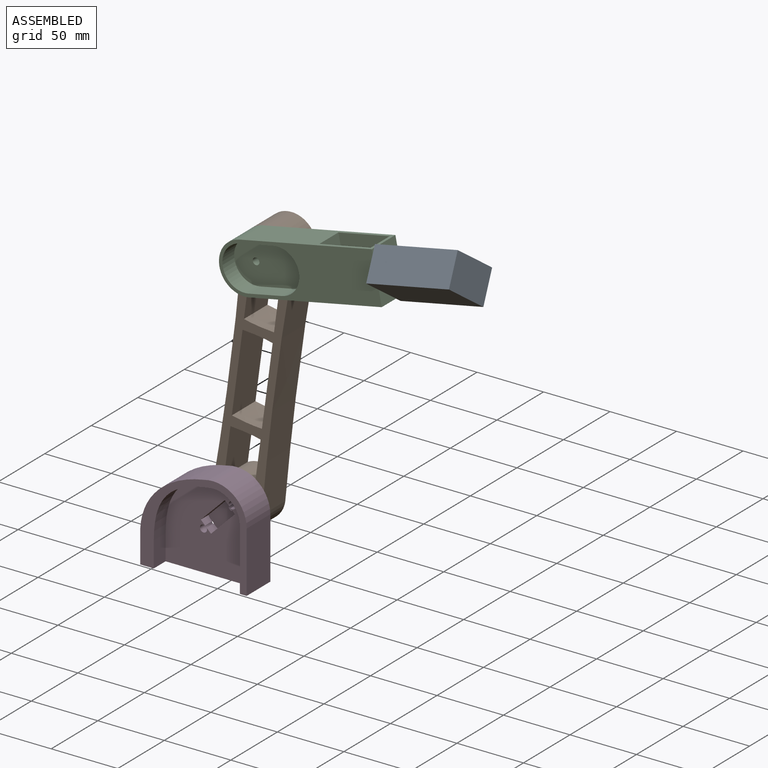
[diagram: assembled view]
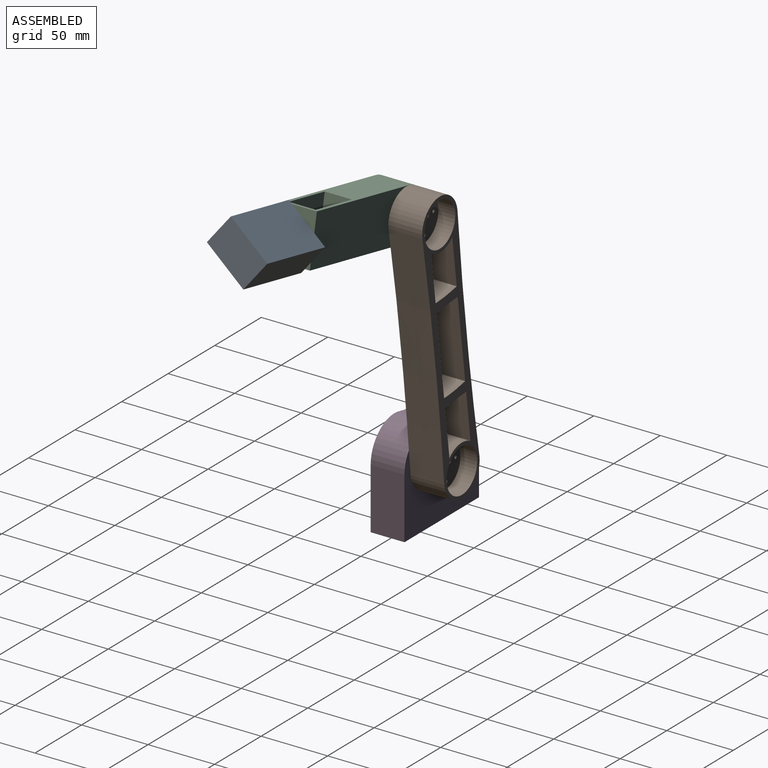
[diagram: assembled view, second angle]
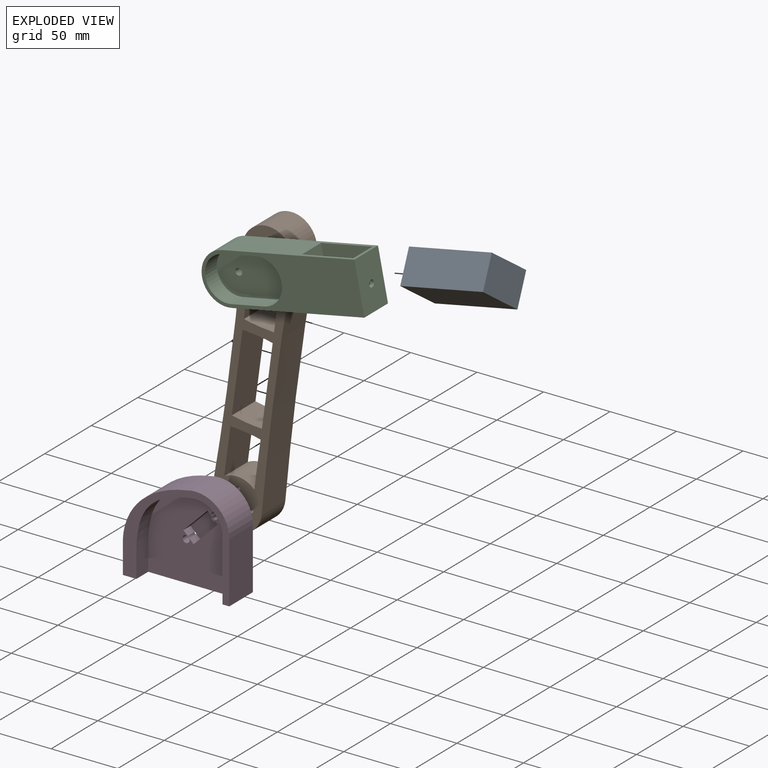
[diagram: exploded view]
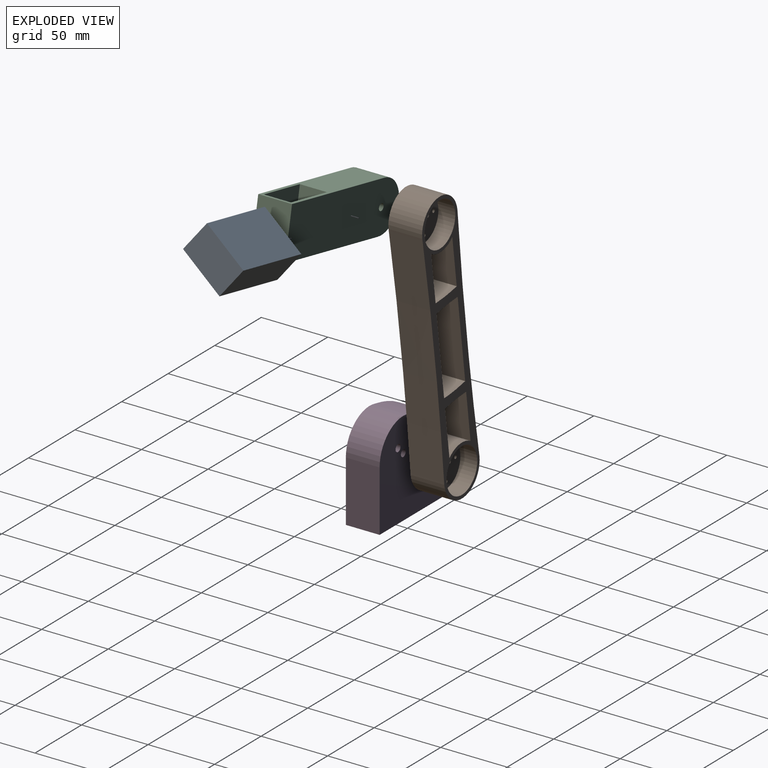
[diagram: exploded view, second angle]
ASSEMBLY  parts=4 mates=3
PART A: 24 faces, bbox 63.5x25.4x38.1 mm
  f0: plane 38.1x25.4mm, normal (-1,0,0), area 906.9mm2, adj f1,f3,f4,f5,f7,f9,f11,f13
  f1: plane 63.5x25.4mm, normal (0,0,-1), area 1612.9mm2, adj f0,f2,f4,f5
  f2: plane 38.1x25.4mm, normal (1,0,0), area 967.7mm2, adj f1,f3,f4,f5
  f3: plane 63.5x25.4mm, normal (0,0,1), area 1612.9mm2, adj f0,f2,f4,f5
  f4: plane 63.5x38.1mm, normal (0,-1,0), area 2419.3mm2, adj f0,f1,f2,f3
  f5: plane 63.5x38.1mm, normal (0,1,0), area 2419.3mm2, adj f0,f1,f2,f3
  f6: cone r=0mm half-angle=59deg, axis (-1,0,0), area 5.9mm2, adj f7
  f7: cylinder r=1.27mm len=7.62mm, axis (-1,0,0), area 60.8mm2, adj f0,f6
  f8: cone r=0mm half-angle=59deg, axis (-1,0,0), area 5.9mm2, adj f9
  f9: cylinder r=1.27mm len=7.62mm, axis (-1,0,0), area 60.8mm2, adj f0,f8
  f10: cone r=0mm half-angle=59deg, axis (-1,0,0), area 5.9mm2, adj f11
  f11: cylinder r=1.27mm len=7.62mm, axis (-1,0,0), area 60.8mm2, adj f0,f10
  f12: cone r=0mm half-angle=59deg, axis (-1,0,0), area 5.9mm2, adj f13
  f13: cylinder r=1.27mm len=7.62mm, axis (-1,0,0), area 60.8mm2, adj f0,f12
  f14: cone r=0mm half-angle=59deg, axis (-1,0,0), area 5.9mm2, adj f15
  f15: cylinder r=1.27mm len=7.62mm, axis (-1,0,0), area 60.8mm2, adj f0,f14
  f16: cone r=0mm half-angle=59deg, axis (-1,0,0), area 5.9mm2, adj f17
  f17: cylinder r=1.27mm len=7.62mm, axis (-1,0,0), area 60.8mm2, adj f0,f16
  f18: cone r=0mm half-angle=59deg, axis (-1,0,0), area 5.9mm2, adj f19
  f19: cylinder r=1.27mm len=7.62mm, axis (-1,0,0), area 60.8mm2, adj f0,f18
  f20: cone r=0mm half-angle=59deg, axis (-1,0,0), area 5.9mm2, adj f21
  f21: cylinder r=1.27mm len=7.62mm, axis (-1,0,0), area 60.8mm2, adj f0,f20
  f22: cone r=0mm half-angle=59deg, axis (-1,0,0), area 23.6mm2, adj f23
  f23: cylinder r=2.54mm len=7.62mm, axis (-1,0,0), area 121.6mm2, adj f0,f22
PART B: 44 faces, bbox 215.9x25.4x38.1 mm
  f0: cylinder r=1.27mm len=12.7mm, axis (0,1,0), area 101.3mm2, adj f9,f10
  f1: cylinder r=1.27mm len=12.7mm, axis (0,1,0), area 101.3mm2, adj f9,f10
  f2: cylinder r=1.27mm len=12.7mm, axis (0,1,0), area 101.3mm2, adj f9,f10
  f3: cylinder r=2.54mm len=12.7mm, axis (0,1,0), area 202.7mm2, adj f9,f10
  f4: cylinder r=1.27mm len=12.7mm, axis (0,1,0), area 101.3mm2, adj f9,f10
  f5: cylinder r=1.27mm len=12.7mm, axis (0,1,0), area 101.3mm2, adj f9,f10
  f6: cylinder r=1.27mm len=12.7mm, axis (0,1,0), area 101.3mm2, adj f9,f10
  f7: cylinder r=1.27mm len=12.7mm, axis (0,1,0), area 101.3mm2, adj f9,f10
  f8: cylinder r=1.27mm len=12.7mm, axis (0,1,0), area 101.3mm2, adj f9,f10
  f9: plane 33.02x33.02mm, normal (0,-1,0), area 795.5mm2, adj f0,f1,f2,f3,f4,f5,f6,f7
  f10: plane 215.9x38.1mm, normal (0,1,0), area 4408.2mm2, adj f0,f1,f2,f3,f4,f5,f6,f7
  f11: extruded ~25.4x22.86mm, area 581.5mm2, adj f10,f12,f27,f33
  f12: plane 35.56x25.4mm, normal (0,0,-1), area 903.2mm2, adj f10,f11,f13,f33
  f13: cylinder r=19.05mm len=25.4mm, axis (0,1,0), area 622.7mm2, adj f10,f12,f27,f33
  f14: extruded ~25.4x22.86mm, area 581.5mm2, adj f10,f15,f28,f33
  f15: plane 60.96x25.4mm, normal (0,0,-1), area 1548.4mm2, adj f10,f14,f16,f33
  f16: extruded ~25.4x22.86mm, area 581.5mm2, adj f10,f15,f28,f33
  f17: plane 35.56x25.4mm, normal (0,0,1), area 903.2mm2, adj f10,f18,f30,f33
  f18: cylinder r=19.05mm len=25.4mm, axis (0,1,0), area 622.7mm2, adj f10,f17,f19,f33
  f19: plane 35.56x25.4mm, normal (0,0,-1), area 903.2mm2, adj f10,f18,f30,f33
  f20: cylinder r=19.05mm len=38.1mm, axis (0,1,0), area 1520.1mm2, adj f10,f21,f31,f33
  f21: extruded ~25.4x1.65mm, area 42mm2, adj f10,f20,f22,f33
  f22: extruded ~174.57x25.4mm, area 4435.3mm2, adj f10,f21,f23,f33
  f23: extruded ~25.4x1.58mm, area 40.2mm2, adj f10,f22,f24,f33
  f24: cylinder r=19.05mm len=38.1mm, axis (0,1,0), area 1520.1mm2, adj f10,f23,f25,f33
  f25: extruded ~25.4x1.58mm, area 40.2mm2, adj f10,f24,f26,f33
  f26: extruded ~174.57x25.4mm, area 4435.3mm2, adj f10,f25,f31,f33
  f27: plane 35.56x25.4mm, normal (0,0,1), area 903.2mm2, adj f10,f11,f13,f33
  f28: plane 60.96x25.4mm, normal (0,0,1), area 1548.4mm2, adj f10,f14,f16,f33
  f29: cylinder r=16.51mm len=33.02mm, axis (0,1,0), area 1317.4mm2, adj f9,f33
  f30: extruded ~25.4x22.86mm, area 581.5mm2, adj f10,f17,f19,f33
  f31: extruded ~25.4x1.65mm, area 42mm2, adj f10,f20,f26,f33
  f32: cylinder r=16.51mm len=33.02mm, axis (0,1,0), area 1317.4mm2, adj f33,f43
  f33: plane 215.9x38.1mm, normal (0,-1,0), area 2817.1mm2, adj f11,f12,f13,f14,f15,f16,f17,f18
  f34: cylinder r=1.27mm len=12.7mm, axis (0,1,0), area 101.3mm2, adj f10,f43
  f35: cylinder r=1.27mm len=12.7mm, axis (0,1,0), area 101.3mm2, adj f10,f43
  f36: cylinder r=1.27mm len=12.7mm, axis (0,1,0), area 101.3mm2, adj f10,f43
  f37: cylinder r=2.54mm len=12.7mm, axis (0,1,0), area 202.7mm2, adj f10,f43
  f38: cylinder r=1.27mm len=12.7mm, axis (0,1,0), area 101.3mm2, adj f10,f43
  f39: cylinder r=1.27mm len=12.7mm, axis (0,1,0), area 101.3mm2, adj f10,f43
  f40: cylinder r=1.27mm len=12.7mm, axis (0,1,0), area 101.3mm2, adj f10,f43
  f41: cylinder r=1.27mm len=12.7mm, axis (0,1,0), area 101.3mm2, adj f10,f43
  f42: cylinder r=1.27mm len=12.7mm, axis (0,1,0), area 101.3mm2, adj f10,f43
  f43: plane 33.02x33.02mm, normal (0,-1,0), area 795.5mm2, adj f32,f34,f35,f36,f37,f38,f39,f40
PART C: 18 faces, bbox 120.7x25.4x38.1 mm
  f0: plane 25.4x12.7mm, normal (0,0,1), area 322.6mm2, adj f1,f7,f8,f11
  f1: cylinder r=16.51mm len=33.02mm, axis (0,1,0), area 658.7mm2, adj f0,f2,f8,f11
  f2: plane 25.4x12.7mm, normal (0,0,-1), area 322.6mm2, adj f1,f7,f8,f11
  f3: cylinder r=19.05mm len=38.1mm, axis (0,1,0), area 1520.1mm2, adj f4,f6,f8,f9
  f4: plane 101.6x25.4mm, normal (0,0,-1), area 2580.6mm2, adj f3,f5,f8,f9
  f5: plane 38.1x25.4mm, normal (1,0,0), area 947.5mm2, adj f4,f6,f8,f9,f17
  f6: plane 101.6x25.4mm, normal (0,0,1), area 1780.6mm2, adj f3,f5,f8,f9,f12,f13,f14,f15
  f7: cylinder r=16.51mm len=33.02mm, axis (0,1,0), area 658.7mm2, adj f0,f2,f8,f11
  f8: plane 120.65x38.1mm, normal (0,-1,0), area 2746mm2, adj f0,f1,f2,f3,f4,f5,f6,f7
  f9: plane 120.65x38.1mm, normal (0,1,0), area 4420.7mm2, adj f3,f4,f5,f6,f10
  f10: cylinder r=2.54mm len=12.7mm, axis (0,1,0), area 202.7mm2, adj f9,f11
  f11: plane 58.42x33.02mm, normal (0,-1,0), area 1674.8mm2, adj f0,f1,f2,f7,f10
  f12: plane 25.4x20.32mm, normal (1,0,0), area 516.1mm2, adj f6,f13,f15,f16
  f13: plane 39.37x25.4mm, normal (0,1,0), area 1000mm2, adj f6,f12,f14,f16
  f14: plane 25.4x20.32mm, normal (-1,0,0), area 495.9mm2, adj f6,f13,f15,f16,f17
  f15: plane 39.37x25.4mm, normal (0,-1,0), area 1000mm2, adj f6,f12,f14,f16
  f16: plane 39.37x20.32mm, normal (0,0,1), area 800mm2, adj f12,f13,f14,f15
  f17: cylinder r=2.54mm len=5.08mm, axis (1,0,0), area 40.5mm2, adj f5,f14
PART D: 26 faces, bbox 81.3x25.4x71.2 mm
  f0: plane 12.7x3.24mm, normal (0.71,0,0.71), area 44.3mm2, adj f13,f18,f19,f21,f23,f25
  f1: plane 19.09x12.7mm, normal (1,0,0), area 242.5mm2, adj f2,f7,f12,f21
  f2: extruded ~42.86x24.85mm, area 679.1mm2, adj f1,f3,f12,f21
  f3: extruded ~14.75x12.7mm, area 193.2mm2, adj f2,f4,f12,f21
  f4: extruded ~12.7x4.84mm, area 62mm2, adj f3,f5,f12,f21
  f5: cylinder r=20.32mm len=20.32mm, axis (0,1,0), area 405.4mm2, adj f4,f6,f12,f21
  f6: plane 45.79x12.7mm, normal (-1,0,0), area 581.6mm2, adj f5,f7,f12,f21
  f7: plane 80.01x25.4mm, normal (0,0,-1), area 1209.7mm2, adj f1,f6,f8,f11,f12,f13,f21
  f8: plane 45.79x25.4mm, normal (1,0,0), area 1163.2mm2, adj f7,f9,f12,f13
  f9: cylinder r=25.4mm len=32.04mm, axis (0,1,0), area 1183.9mm2, adj f8,f10,f12,f13
  f10: extruded ~51.26x48.05mm, area 1969.5mm2, adj f9,f11,f12,f13
  f11: plane 25.4x19.05mm, normal (-1,0,0), area 483.9mm2, adj f7,f10,f12,f13
  f12: plane 81.33x71.19mm, normal (0,-1,0), area 1147.2mm2, adj f1,f2,f3,f4,f5,f6,f7,f8
  f13: plane 81.33x71.19mm, normal (0,1,0), area 4896mm2, adj f0,f7,f8,f9,f10,f11,f14,f16
  f14: plane 17.96x17.96mm, normal (0.71,0,-0.71), area 195.7mm2, adj f13,f15,f20,f21,f22,f25
  f15: plane 7.62x3.24mm, normal (-0.71,0,-0.71), area 34.9mm2, adj f14,f16,f21,f25
  f16: cylinder r=2.67mm len=12.7mm, axis (0,1,0), area 200.2mm2, adj f13,f15,f17,f21,f25
  f17: plane 7.62x3.24mm, normal (-0.71,0,-0.71), area 34.9mm2, adj f16,f18,f21,f25
  f18: plane 17.96x17.96mm, normal (-0.71,0,0.71), area 195.7mm2, adj f0,f13,f17,f21,f23,f25
  f19: cylinder r=2.67mm len=12.7mm, axis (0,1,0), area 200.2mm2, adj f0,f13,f20,f21,f25
  f20: plane 12.7x3.24mm, normal (0.71,0,0.71), area 44.3mm2, adj f13,f14,f19,f21,f22,f25
  f21: plane 66.11x64.77mm, normal (0,-1,0), area 3496.3mm2, adj f0,f1,f2,f3,f4,f5,f6,f7
  f22: cylinder r=20.32mm len=5.08mm, axis (0,1,0), area 9.7mm2, adj f13,f14,f20,f25
  f23: cylinder r=20.32mm len=5.08mm, axis (0,1,0), area 9.7mm2, adj f0,f13,f18,f25
  f24: cylinder r=2.54mm len=5.08mm, axis (0,1,0), area 81.1mm2, adj f13,f25
  f25: plane 25.28x25.28mm, normal (0,-1,0), area 252.4mm2, adj f0,f14,f15,f16,f17,f18,f19,f20
PLACE A rot(axis=(0.98,-0.19,0.1),54.4deg) t=(-20.42,10.98,184.44)mm
PLACE B rot(axis=(-0.66,0,0.75),180deg) t=(-85.64,17.11,77.67)mm
PLACE C rot(axis=(0,-1,0),11.4deg) t=(-18.51,17.11,174.96)mm
PLACE D rot(axis=(1,0,0),0deg) t=(-113.49,17.11,-46.34)mm fixed
MATE revolute C.f1 <-> B.f3  axis (0,1,0) through (-74.1,17.11,163.78)mm
MATE revolute B.f24 <-> D.f5  axis (0,-1,0) through (-97.7,17.11,-12.45)mm
MATE revolute A.f23 <-> C.f17  axis (-0.98,0,-0.2) through (25.75,4.41,182.56)mm
